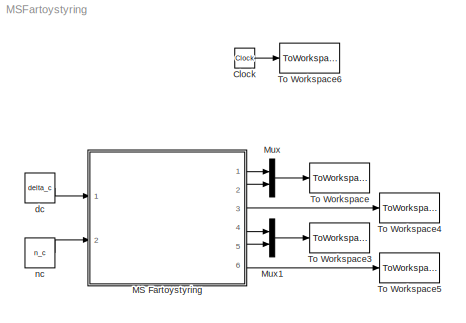
MODEL MSFartoystyring
KIND model
BLOCK [Clock] Clock
  SID = 1
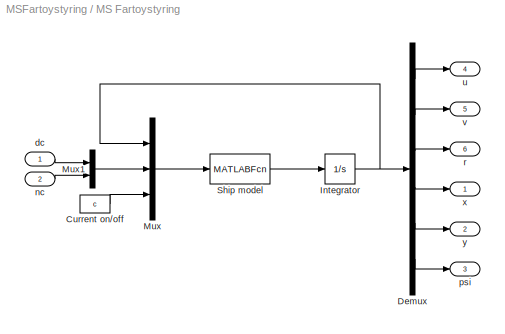
BLOCK [SubSystem] MS Fartoystyring
  Ports = [2, 6]
  RequestExecContextInheritance = off
  SID = 2
BLOCK [Constant] MS Fartoystyring/Current on//off
  SID = 5
  Value = c
BLOCK [Demux] MS Fartoystyring/Demux
  DisplayOption = bar
  Outputs = 6
  Ports = [1, 6]
  SID = 6
BLOCK [Integrator] MS Fartoystyring/Integrator
  InitialCondition = [u0 v0 r0 x0 y0 psi0]'
  Ports = [1, 1]
  SID = 7
BLOCK [Mux] MS Fartoystyring/Mux
  DisplayOption = bar
  Inputs = 3
  Ports = [3, 1]
  SID = 8
BLOCK [Mux] MS Fartoystyring/Mux1
  DisplayOption = bar
  Inputs = 2
  Ports = [2, 1]
  SID = 9
BLOCK [MATLABFcn] MS Fartoystyring/Ship model
  MATLABFcn = msfartoystyring(u(1:6), u(7:8), u(9))
  OutputDimensions = 6
  Ports = [1, 1]
  SID = 10
BLOCK [Inport] MS Fartoystyring/dc
  IconDisplay = Port number
  SID = 3
BLOCK [Inport] MS Fartoystyring/nc
  IconDisplay = Port number
  Port = 2
  SID = 4
BLOCK [Outport] MS Fartoystyring/psi
  IconDisplay = Port number
  Port = 3
  SID = 13
BLOCK [Outport] MS Fartoystyring/r
  IconDisplay = Port number
  Port = 6
  SID = 16
BLOCK [Outport] MS Fartoystyring/u
  IconDisplay = Port number
  Port = 4
  SID = 14
BLOCK [Outport] MS Fartoystyring/v
  IconDisplay = Port number
  Port = 5
  SID = 15
BLOCK [Outport] MS Fartoystyring/x
  IconDisplay = Port number
  SID = 11
BLOCK [Outport] MS Fartoystyring/y
  IconDisplay = Port number
  Port = 2
  SID = 12
BLOCK [Mux] Mux
  DisplayOption = bar
  Inputs = 2
  Ports = [2, 1]
  SID = 17
BLOCK [Mux] Mux1
  DisplayOption = bar
  Inputs = 2
  Ports = [2, 1]
  SID = 18
BLOCK [ToWorkspace] To Workspace
  MaxDataPoints = inf
  Ports = [1]
  SID = 19
  SampleTime = tsamp
  VariableName = p
BLOCK [ToWorkspace] To Workspace3
  MaxDataPoints = inf
  Ports = [1]
  SID = 20
  SampleTime = tsamp
  VariableName = v
BLOCK [ToWorkspace] To Workspace4
  MaxDataPoints = inf
  Ports = [1]
  SID = 21
  SampleTime = tsamp
  VariableName = psi
BLOCK [ToWorkspace] To Workspace5
  MaxDataPoints = inf
  Ports = [1]
  SID = 22
  SampleTime = tsamp
  VariableName = r
BLOCK [ToWorkspace] To Workspace6
  MaxDataPoints = inf
  Ports = [1]
  SID = 23
  SampleTime = tsamp
  VariableName = t
BLOCK [Constant] dc
  SID = 24
  Value = delta_c
BLOCK [Constant] nc
  SID = 25
  Value = n_c
LINE Clock:1 -> To Workspace6:1
LINE MS Fartoystyring/Current on//off:1 -> MS Fartoystyring/Mux:3
LINE MS Fartoystyring/Demux:1 -> MS Fartoystyring/u:1
LINE MS Fartoystyring/Demux:2 -> MS Fartoystyring/v:1
LINE MS Fartoystyring/Demux:3 -> MS Fartoystyring/r:1
LINE MS Fartoystyring/Demux:4 -> MS Fartoystyring/x:1
LINE MS Fartoystyring/Demux:5 -> MS Fartoystyring/y:1
LINE MS Fartoystyring/Demux:6 -> MS Fartoystyring/psi:1
NET MS Fartoystyring/Integrator:1 -> MS Fartoystyring/Demux:1, MS Fartoystyring/Mux:1
LINE MS Fartoystyring/Mux1:1 -> MS Fartoystyring/Mux:2
LINE MS Fartoystyring/Mux:1 -> MS Fartoystyring/Ship model:1
LINE MS Fartoystyring/Ship model:1 -> MS Fartoystyring/Integrator:1
LINE MS Fartoystyring/dc:1 -> MS Fartoystyring/Mux1:1
LINE MS Fartoystyring/nc:1 -> MS Fartoystyring/Mux1:2
LINE MS Fartoystyring:1 -> Mux:1
LINE MS Fartoystyring:2 -> Mux:2
LINE MS Fartoystyring:3 -> To Workspace4:1
LINE MS Fartoystyring:4 -> Mux1:1
LINE MS Fartoystyring:5 -> Mux1:2
LINE MS Fartoystyring:6 -> To Workspace5:1
LINE Mux1:1 -> To Workspace3:1
LINE Mux:1 -> To Workspace:1
LINE dc:1 -> MS Fartoystyring:1
LINE nc:1 -> MS Fartoystyring:2
note: NET lines group one-source signal fan-out (src -> all destinations, sorted); 1:1 wires keep LINE
